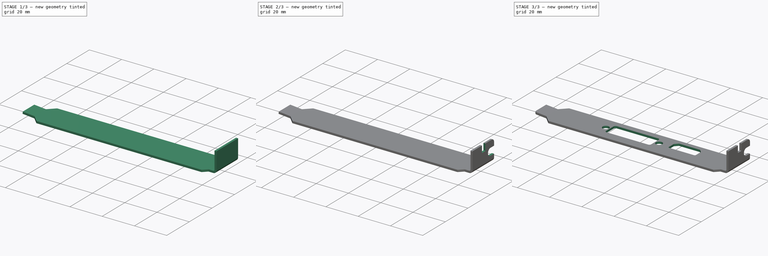
[diagram: build sequence overview — one tinted view per stage of 3, left to right]
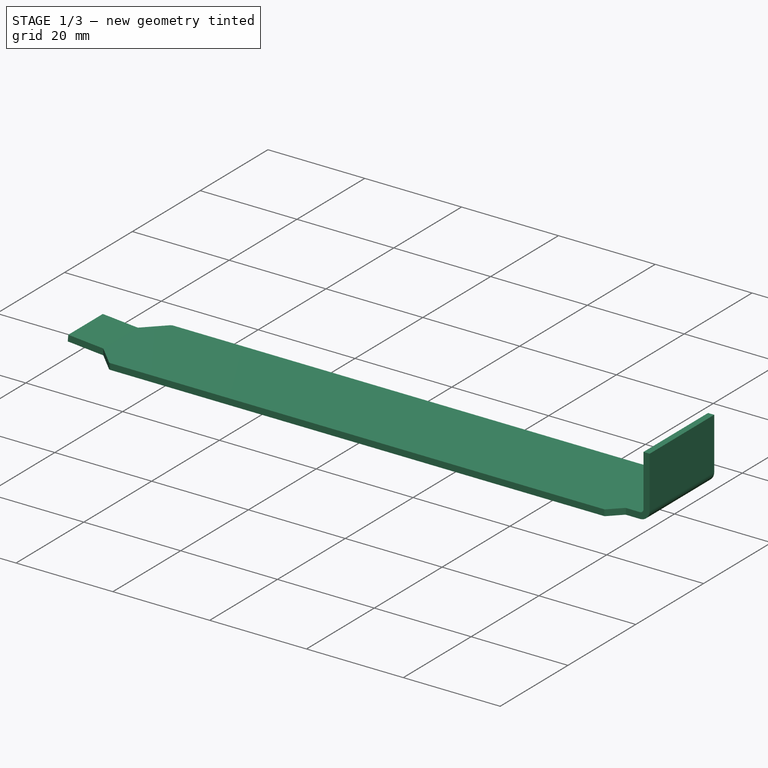
[diagram: stage 1 of 3 — iso view after this stage's code; geometry added in this stage tinted green]
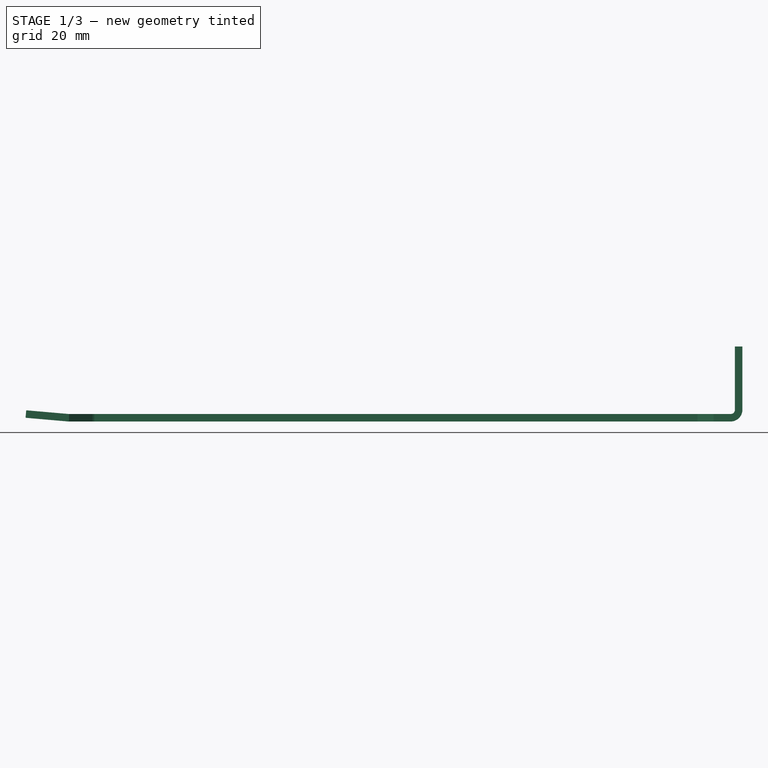
[diagram: stage 1 of 3 — front view after this stage's code; geometry added in this stage tinted green]
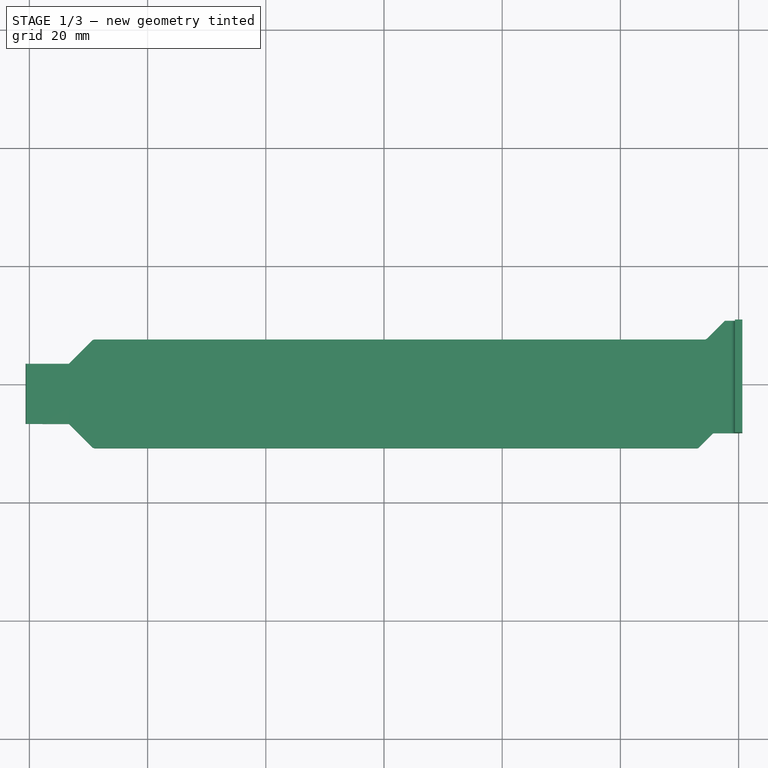
[diagram: stage 1 of 3 — top view after this stage's code; geometry added in this stage tinted green]
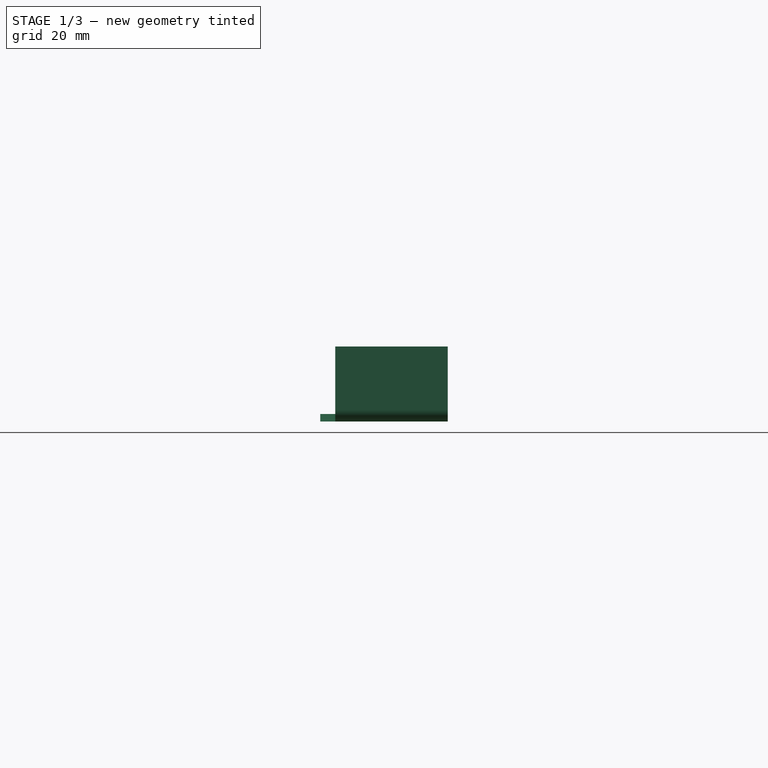
[diagram: stage 1 of 3 — right view after this stage's code; geometry added in this stage tinted green]
FCSTD DOCUMENT  (FreeCAD 1.1R)
Label: bracket
License: All rights reserved
LicenseURL: https://en.wikipedia.org/wiki/All_rights_reserved
objects: Sketcher::SketchObject×4, PartDesign::Pocket×3, PartDesign::Fillet×2, App::Point×1, PartDesign::Pad×1, Image::ImagePlane×1, PartDesign::Body×1
note: 27 computed .brp shape members not serialized (recipe doc carries the construction recipe); baked Part::Feature solids carry a one-line shape summary decoded from their .brp

FEATURE [App::Point] Origin070
  Role = Origin
FEATURE [Sketcher::SketchObject] Sketch
  ArcFitTolerance = 0
  AttachmentOffset = pos=(0,0,-10.79) rot=(0,0,1;0rad)
  AttachmentSupport = -> [XZ_Plane]
  ExternalTypes = [0]
  FullyConstrained = false
  MakeInternals = false
  MapMode = 5
  Placement = pos=(0,10.79,-2.4e-15) rot=(1,0,0;1.5708rad)
  sketch-geometry (11):
    g0: LineSegment StartX=-60.5393 StartY=1.89952 StartZ=0 EndX=-53.3092 EndY=1.26952 EndZ=0
    g1: LineSegment StartX=59.3822 StartY=2.00552 StartZ=0 EndX=59.3813 EndY=12.6995 EndZ=0
    g2: LineSegment StartX=-53.3092 StartY=1.26952 StartZ=0 EndX=58.6453 EndY=1.26852 EndZ=0
    g3: LineSegment StartX=-53.4252 StartY=0.00352388 StartZ=0 EndX=-60.6502 EndY=0.634524 EndZ=0
    g4: LineSegment StartX=58.6453 StartY=0.000523883 StartZ=0 EndX=-53.2983 EndY=-0.000476117 EndZ=0
    g5: LineSegment StartX=60.6502 StartY=12.6995 StartZ=0 EndX=60.6502 EndY=2.00552 EndZ=0
    g6: ArcOfCircle CenterX=58.6453 CenterY=2.00552 CenterZ=0 NormalX=0 NormalY=0 NormalZ=1 AngleXU=0 Radius=2.005 StartAngle=4.71239 EndAngle=6.28319
    g7: LineSegment StartX=-60.6502 StartY=0.634524 StartZ=0 EndX=-60.5393 EndY=1.89952 EndZ=0
    g8: ArcOfCircle CenterX=58.6453 CenterY=2.00552 CenterZ=0 NormalX=0 NormalY=0 NormalZ=1 AngleXU=0 Radius=0.737 StartAngle=4.71239 EndAngle=6.28319
    g9: LineSegment StartX=59.3813 StartY=12.6995 StartZ=0 EndX=60.6502 EndY=12.6995 EndZ=0
    g10: LineSegment StartX=-53.4252 StartY=0.00352388 StartZ=0 EndX=-53.2982 EndY=-0.000476117 EndZ=0
FEATURE [PartDesign::Pad] Pad  label="Body"
  Direction = (0,-1,2e-16)
  Length = 21.59
  Length2 = 10
  Placement = pos=(0,0,0) rot=(1,0,0;1.5708rad)
  Profile = -> Sketch
  ReferenceAxis = -> Sketch [N_Axis]
  SideType = 0
  Suppressed = false
  Type = 0
  Type2 = 0
FEATURE [Sketcher::SketchObject] Sketch001
  ArcFitTolerance = 0
  AttachmentOffset = pos=(0,30,0) rot=(0,0,1;0rad)
  AttachmentSupport = -> [XY_Plane]
  ExternalTypes = [0]
  FullyConstrained = false
  MakeInternals = false
  MapMode = 5
  Placement = pos=(0,30,0) rot=(0,0,1;0rad)
  sketch-geometry (22):
    g0: LineSegment StartX=-65.6502 StartY=-36.681 StartZ=0 EndX=-65.6503 EndY=-44.909 EndZ=0
    g1: LineSegment StartX=-53.3092 StartY=-26.495 StartZ=0 EndX=-49.3227 EndY=-22.497 EndZ=0
    g2: LineSegment StartX=52.0743 StartY=-41.201 StartZ=0 EndX=52.0743 EndY=-46.483 EndZ=0
    g3: LineSegment StartX=-65.6503 StartY=-26.495 StartZ=0 EndX=-65.6502 EndY=-11.915 EndZ=0
    g4: LineSegment StartX=57.6922 StartY=-19.205 StartZ=0 EndX=57.6922 EndY=-11.915 EndZ=0
    g5: LineSegment StartX=-47.0508 StartY=-41.614 StartZ=0 EndX=-49.3227 EndY=-40.678 EndZ=0
    g6: LineSegment StartX=-53.3092 StartY=-36.681 StartZ=0 EndX=-49.3227 EndY=-40.678 EndZ=0
    g7: LineSegment StartX=-47.0508 StartY=-44.909 StartZ=0 EndX=-65.6503 EndY=-44.909 EndZ=0
    g8: LineSegment StartX=64.4153 StartY=-38.255 StartZ=0 EndX=64.4153 EndY=-46.483 EndZ=0
    g9: LineSegment StartX=-47.0508 StartY=-41.614 StartZ=0 EndX=-47.0508 EndY=-44.909 EndZ=0
    g10: LineSegment StartX=57.6922 StartY=-11.915 StartZ=0 EndX=-65.6502 EndY=-11.915 EndZ=0
    g11: LineSegment StartX=52.0743 StartY=-41.201 StartZ=0 EndX=53.2022 EndY=-40.737 EndZ=0
    g12: LineSegment StartX=55.6252 StartY=-38.313 StartZ=0 EndX=55.7673 EndY=-38.255 EndZ=0
    g13: LineSegment StartX=-65.6502 StartY=-36.681 StartZ=0 EndX=-53.3092 EndY=-36.681 EndZ=0
    g14: LineSegment StartX=-65.6503 StartY=-26.495 StartZ=0 EndX=-53.3092 EndY=-26.495 EndZ=0
    g15: LineSegment StartX=52.0743 StartY=-46.483 StartZ=0 EndX=64.4153 EndY=-46.483 EndZ=0
    g16: LineSegment StartX=53.2022 StartY=-40.737 StartZ=0 EndX=55.6252 EndY=-38.313 EndZ=0
    g17: LineSegment StartX=54.6353 StartY=-22.263 StartZ=0 EndX=57.6922 EndY=-19.205 EndZ=0
    g18: LineSegment StartX=54.3512 StartY=-22.381 StartZ=0 EndX=54.6353 EndY=-22.263 EndZ=0
    g19: LineSegment StartX=-49.0387 StartY=-22.381 StartZ=0 EndX=54.3512 EndY=-22.381 EndZ=0
    g20: LineSegment StartX=-49.0387 StartY=-22.381 StartZ=0 EndX=-49.3227 EndY=-22.497 EndZ=0
    g21: LineSegment StartX=55.7673 StartY=-38.255 StartZ=0 EndX=64.4153 EndY=-38.255 EndZ=0
FEATURE [PartDesign::Pocket] Pocket  label="Edge"
  BaseFeature = -> Pad
  Direction = (0,0,-1)
  Length = 5
  Length2 = 5
  Placement = pos=(0,0,0) rot=(1,0,0;1.5708rad)
  Profile = -> Sketch001
  ReferenceAxis = -> Sketch001 [N_Axis]
  SideType = 2
  Suppressed = false
  Type = 1
  Type2 = 0
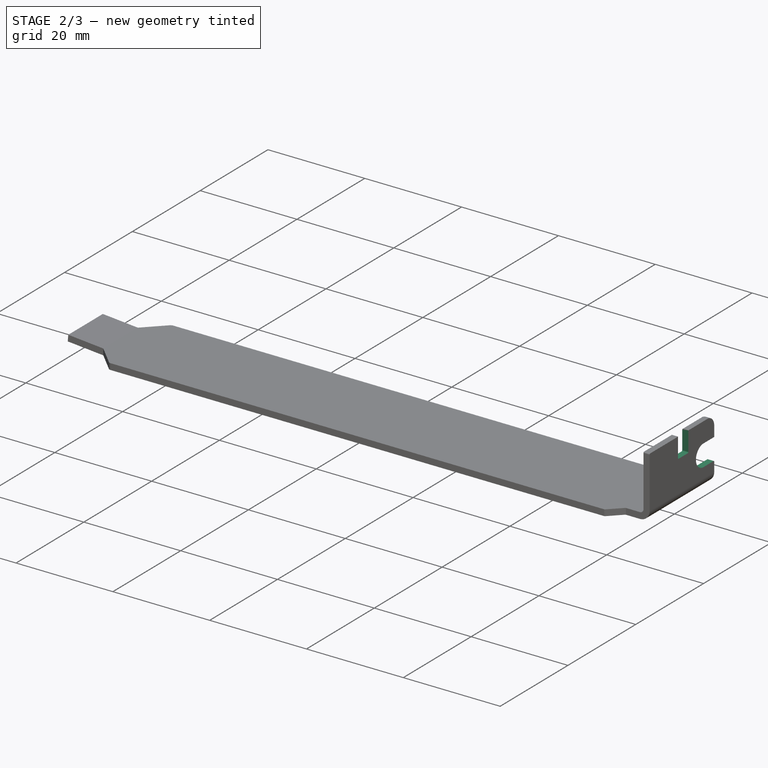
[diagram: stage 2 of 3 — iso view after this stage's code; geometry added in this stage tinted green]
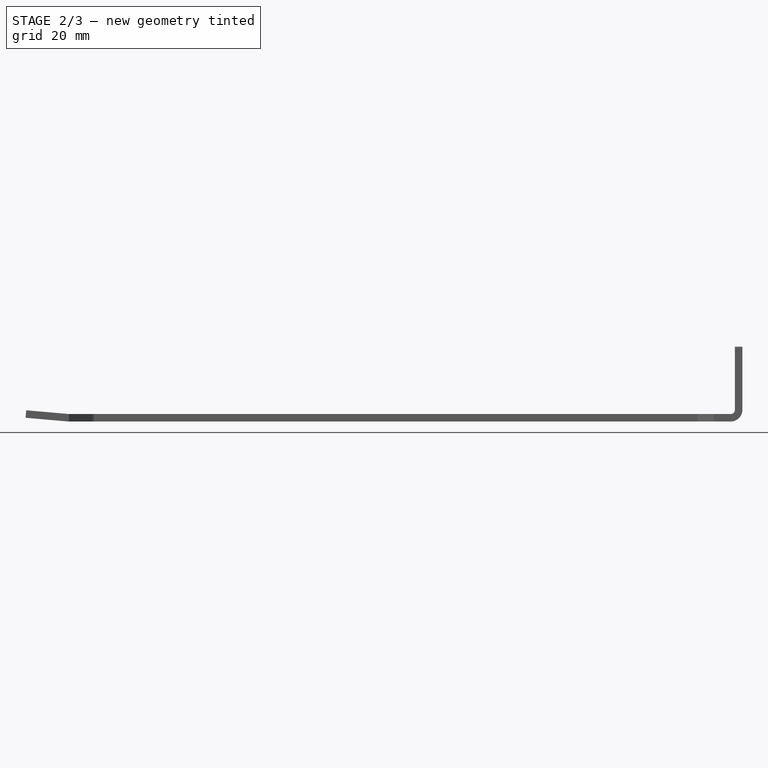
[diagram: stage 2 of 3 — front view after this stage's code; geometry added in this stage tinted green]
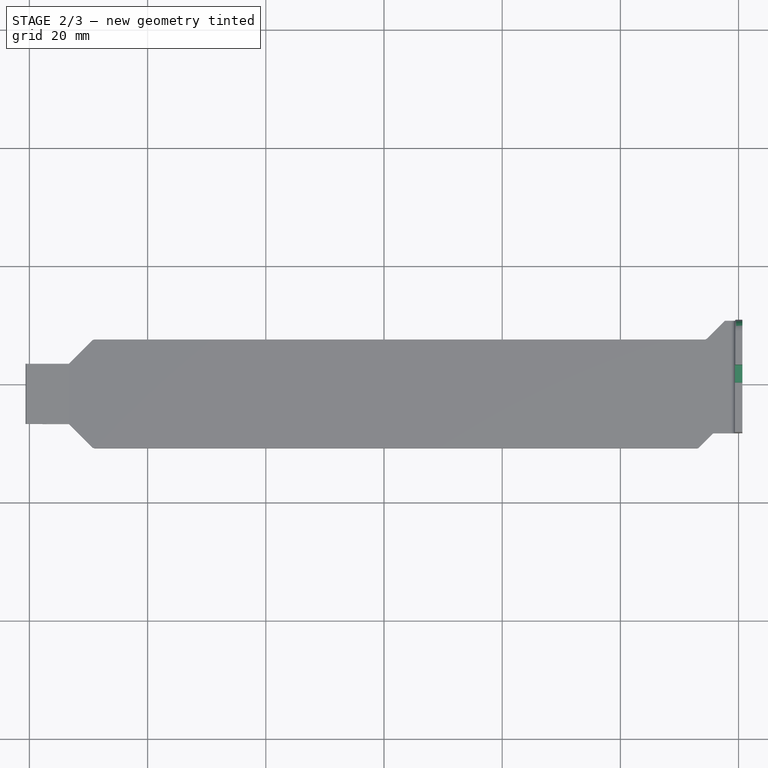
[diagram: stage 2 of 3 — top view after this stage's code; geometry added in this stage tinted green]
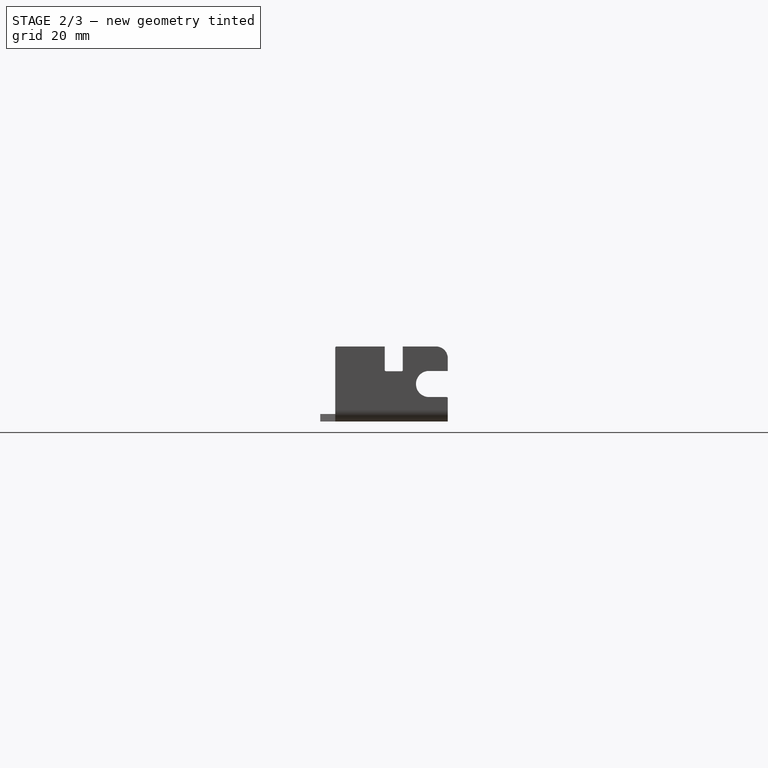
[diagram: stage 2 of 3 — right view after this stage's code; geometry added in this stage tinted green]
FEATURE [Sketcher::SketchObject] Sketch002
  ArcFitTolerance = 0
  AttachmentOffset = pos=(1.263,0,60.65) rot=(0,0,1;0rad)
  AttachmentSupport = -> [YZ_Plane]
  ExternalTypes = [0]
  FullyConstrained = false
  MakeInternals = false
  MapMode = 5
  Placement = pos=(60.65,1.263,0) rot=(0.57735,0.57735,0.57735;2.0944rad)
  sketch-geometry (13):
    g0: LineSegment StartX=6.351 StartY=8.559 StartZ=0 EndX=10.527 EndY=8.559 EndZ=0
    g1: LineSegment StartX=1.907 StartY=8.509 StartZ=0 EndX=-1.141 EndY=8.509 EndZ=0
    g2: LineSegment StartX=10.527 StartY=4.14 StartZ=0 EndX=6.351 EndY=4.14 EndZ=0
    g3: LineSegment StartX=10.527 StartY=4.14 StartZ=0 EndX=10.527 EndY=8.559 EndZ=0
    g4: LineSegment StartX=1.907 StartY=13.7 StartZ=0 EndX=1.907 EndY=8.509 EndZ=0
    g5: LineSegment StartX=-1.141 StartY=8.509 StartZ=0 EndX=-1.141 EndY=13.7 EndZ=0
    g6: ArcOfCircle CenterX=7.527 CenterY=10.7 CenterZ=0 NormalX=0 NormalY=0 NormalZ=1 AngleXU=0 Radius=2 StartAngle=0 EndAngle=1.5708
    g7: LineSegment StartX=10.527 StartY=10.7 StartZ=0 EndX=10.527 EndY=13.7 EndZ=0
    g8: LineSegment StartX=7.527 StartY=12.7 StartZ=0 EndX=7.527 EndY=13.7 EndZ=0
    g9: LineSegment StartX=1.907 StartY=13.7 StartZ=0 EndX=-1.141 EndY=13.7 EndZ=0
    g10: ArcOfCircle CenterX=6.351 CenterY=6.3495 CenterZ=0 NormalX=0 NormalY=0 NormalZ=1 AngleXU=0 Radius=2.2095 StartAngle=1.5708 EndAngle=4.71239
    g11: LineSegment StartX=9.527 StartY=10.7 StartZ=0 EndX=10.527 EndY=10.7 EndZ=0
    g12: LineSegment StartX=7.527 StartY=13.7 StartZ=0 EndX=10.527 EndY=13.7 EndZ=0
FEATURE [PartDesign::Pocket] Pocket001  label="EdgeSide"
  BaseFeature = -> Pocket
  Direction = (-1,0,0)
  Length = 5
  Length2 = 5
  Placement = pos=(0,0,0) rot=(1,0,0;1.5708rad)
  Profile = -> Sketch002
  ReferenceAxis = -> Sketch002 [N_Axis]
  SideType = 2
  Suppressed = false
  Type = 1
  Type2 = 0
FEATURE [PartDesign::Fillet] Fillet  label="RoundEdgesSide"
  Base = -> Pocket001 [Edge92,Edge52,Edge96,Edge90,Edge95,Edge94,Edge64]
  BaseFeature = -> Pocket001
  Placement = pos=(0,0,0) rot=(1,0,0;1.5708rad)
  Radius = 0.2
  SupportTransform = false
  Suppressed = false
  UseAllEdges = false
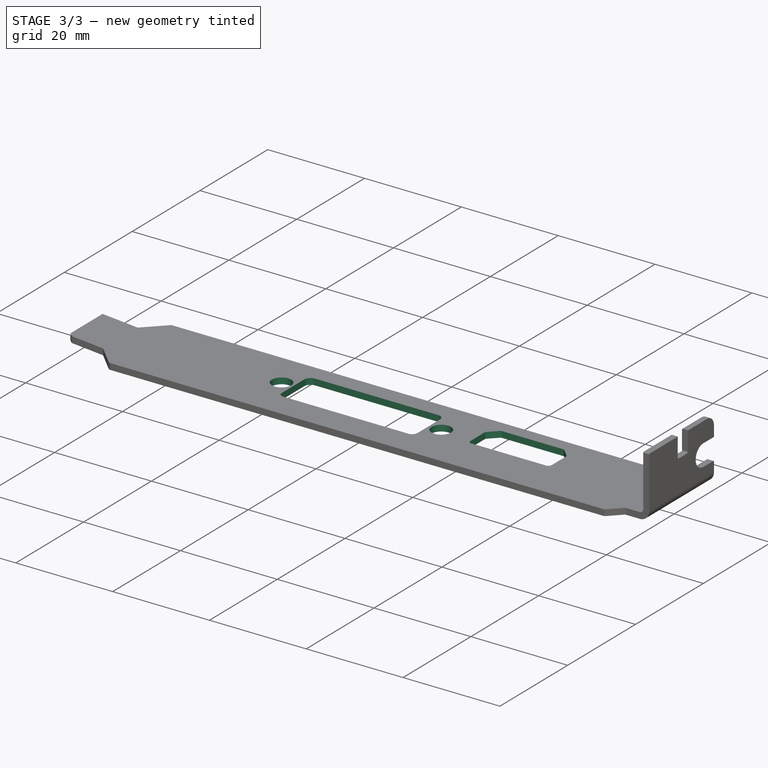
[diagram: stage 3 of 3 — iso view after this stage's code; geometry added in this stage tinted green]
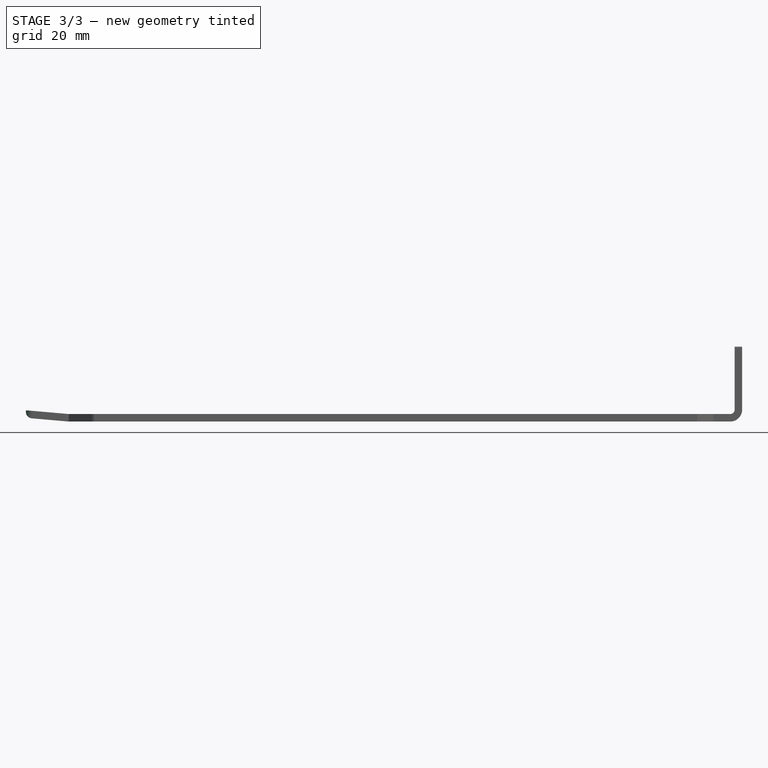
[diagram: stage 3 of 3 — front view after this stage's code; geometry added in this stage tinted green]
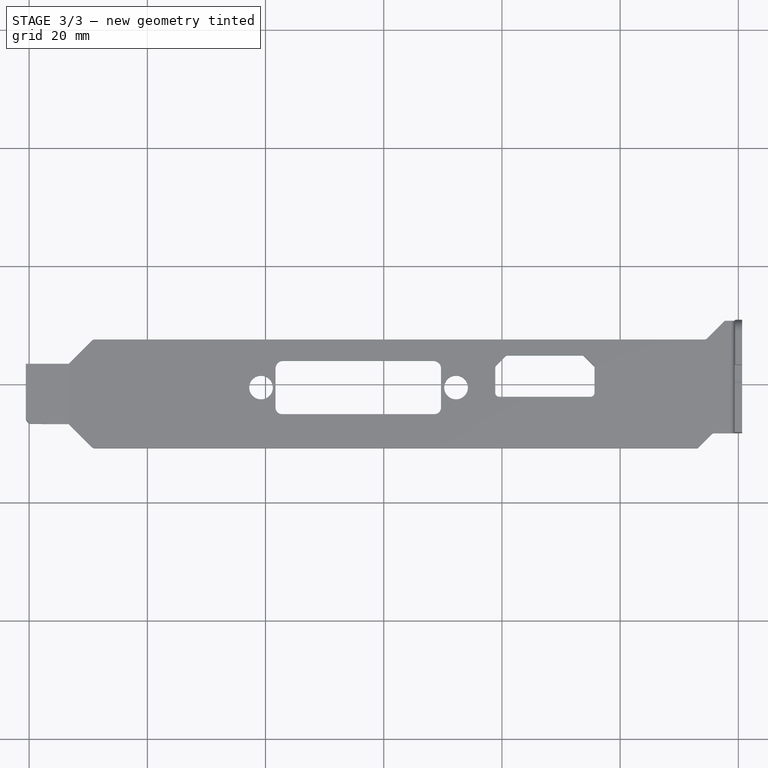
[diagram: stage 3 of 3 — top view after this stage's code; geometry added in this stage tinted green]
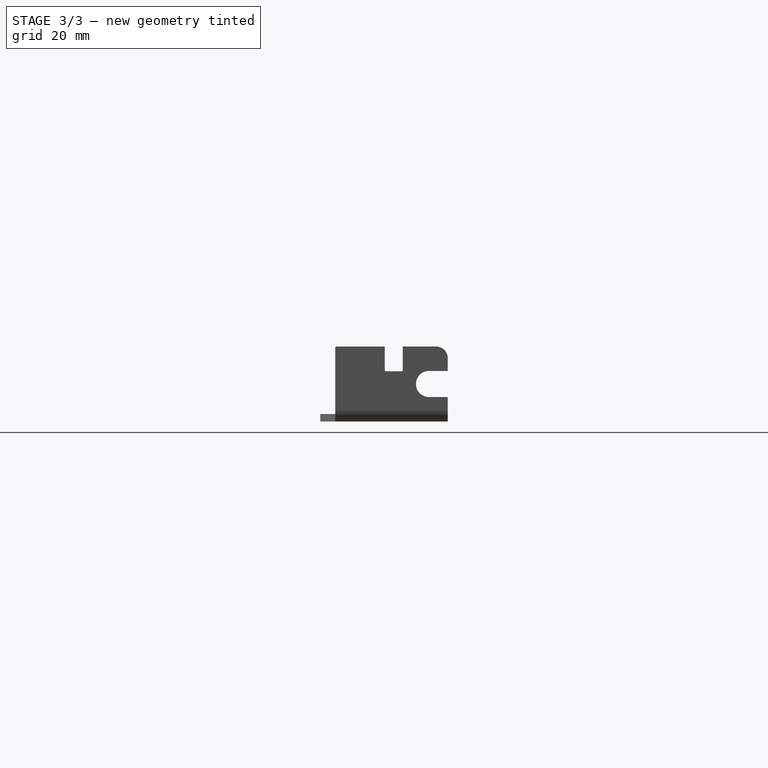
[diagram: stage 3 of 3 — right view after this stage's code; geometry added in this stage tinted green]
FEATURE [PartDesign::Fillet] Fillet001  label="RoundEdgesBottom"
  Base = -> Fillet [Edge115,Edge117]
  BaseFeature = -> Fillet
  Placement = pos=(0,0,0) rot=(1,0,0;1.5708rad)
  Radius = 1.107
  SupportTransform = false
  Suppressed = false
  UseAllEdges = false
FEATURE [Image::ImagePlane] IMG_20260102_180432
  Placement = pos=(-19.763,0.293413,0) rot=(-0.71325,0.700909,0;3.14159rad)
  XSize = 170.944
  YSize = 227.925
FEATURE [Sketcher::SketchObject] Sketch003
  ArcFitTolerance = 1e-06
  AttachmentSupport = -> [Origin]
  ExternalTypes = [0]
  FullyConstrained = false
  MakeInternals = false
  MapMode = 5
  sketch-geometry (33):
    g0: Circle CenterX=-20.7615 CenterY=-0.508223 CenterZ=0 NormalX=0 NormalY=0 NormalZ=1 AngleXU=0 Radius=2
    g1: Circle CenterX=12.2385 CenterY=-0.508223 CenterZ=0 NormalX=0 NormalY=0 NormalZ=1 AngleXU=0 Radius=2
    g2: LineSegment [constr] StartX=-20.7615 StartY=-0.508223 StartZ=0 EndX=12.2385 EndY=-0.508223 EndZ=0
    g3: LineSegment StartX=-17.215 StartY=-5.00822 StartZ=0 EndX=8.5994 EndY=-5.00822 EndZ=0
    g4: LineSegment StartX=9.69219 StartY=-3.91543 StartZ=0 EndX=9.69219 EndY=2.71898 EndZ=0
    g5: LineSegment StartX=8.4194 StartY=3.99178 StartZ=0 EndX=-17.035 EndY=3.99178 EndZ=0
    g6: LineSegment StartX=-18.3078 StartY=2.71898 StartZ=0 EndX=-18.3078 EndY=-3.91543 EndZ=0
    g7: ArcOfCircle CenterX=8.4194 CenterY=2.71898 CenterZ=0 NormalX=0 NormalY=0 NormalZ=1 AngleXU=0 Radius=1.27279 StartAngle=0 EndAngle=1.5708
    g8: GeomPoint [constr] X=9.69219 Y=3.99178 Z=0
    g9: ArcOfCircle CenterX=-17.035 CenterY=2.71898 CenterZ=0 NormalX=0 NormalY=0 NormalZ=1 AngleXU=0 Radius=1.27279 StartAngle=1.5708 EndAngle=3.14159
    g10: GeomPoint [constr] X=-18.3078 Y=3.99178 Z=0
    g11: ArcOfCircle CenterX=-17.215 CenterY=-3.91543 CenterZ=0 NormalX=0 NormalY=0 NormalZ=1 AngleXU=0 Radius=1.09279 StartAngle=3.14159 EndAngle=4.71239
    g12: GeomPoint [constr] X=-18.3078 Y=-5.00822 Z=0
    g13: ArcOfCircle CenterX=8.5994 CenterY=-3.91543 CenterZ=0 NormalX=0 NormalY=0 NormalZ=1 AngleXU=0 Radius=1.09279 StartAngle=4.71239 EndAngle=6.28319
    g14: GeomPoint [constr] X=9.69219 Y=-5.00822 Z=0
    g15: LineSegment StartX=19.5672 StartY=-2.08153 StartZ=0 EndX=34.9512 EndY=-2.08153 EndZ=0
    g16: LineSegment StartX=35.6728 StartY=-1.35992 StartZ=0 EndX=35.6728 EndY=2.81281 EndZ=0
    g17: LineSegment StartX=35.5274 StartY=3.16389 StartZ=0 EndX=33.9071 EndY=4.78418 EndZ=0
    g18: LineSegment StartX=33.5829 StartY=4.91847 StartZ=0 EndX=20.9785 EndY=4.91847 EndZ=0
    g19: LineSegment StartX=20.6274 StartY=4.77305 StartZ=0 EndX=19.0071 EndY=3.15275 EndZ=0
    g20: LineSegment StartX=18.8728 StartY=2.82855 StartZ=0 EndX=18.8728 EndY=-1.38714 EndZ=0
    g21: ArcOfCircle CenterX=34.9512 CenterY=-1.35993 CenterZ=0 NormalX=0 NormalY=0 NormalZ=1 AngleXU=0 Radius=0.721609 StartAngle=4.71239 EndAngle=6.28319
    g22: GeomPoint [constr] X=35.6728 Y=-2.08153 Z=0
    g23: ArcOfCircle CenterX=35.1763 CenterY=2.81281 CenterZ=0 NormalX=0 NormalY=0 NormalZ=1 AngleXU=0 Radius=0.496494 StartAngle=0 EndAngle=0.785398
    g24: GeomPoint [constr] X=35.6728 Y=3.01847 Z=0
    g25: ArcOfCircle CenterX=33.5829 CenterY=4.45997 CenterZ=0 NormalX=0 NormalY=0 NormalZ=1 AngleXU=0 Radius=0.458494 StartAngle=0.785398 EndAngle=1.5708
    g26: GeomPoint [constr] X=33.7728 Y=4.91847 Z=0
    g27: ArcOfCircle CenterX=20.9785 CenterY=4.42197 CenterZ=0 NormalX=0 NormalY=0 NormalZ=1 AngleXU=0 Radius=0.496494 StartAngle=1.5708 EndAngle=2.35619
    g28: GeomPoint [constr] X=20.7728 Y=4.91847 Z=0
    g29: ArcOfCircle CenterX=19.3313 CenterY=2.82855 CenterZ=0 NormalX=0 NormalY=0 NormalZ=1 AngleXU=0 Radius=0.458494 StartAngle=2.35619 EndAngle=3.14159
    g30: GeomPoint [constr] X=18.8728 Y=3.01847 Z=0
    g31: ArcOfCircle CenterX=19.5672 CenterY=-1.38714 CenterZ=0 NormalX=0 NormalY=0 NormalZ=1 AngleXU=0 Radius=0.694391 StartAngle=3.14159 EndAngle=4.71239
    g32: GeomPoint [constr] X=18.8728 Y=-2.08153 Z=0
  constraints (60):
    c: Equal(g1,g0)
    c: Diameter(g0) = 4
    c: Coincident(g2,g0)
    c: Coincident(g2,g1)
    c: Horizontal(g2)
    c: DistanceX(g2,g2) = 33
    c: Horizontal(g3)
    c: Horizontal(g5)
    c: Vertical(g6)
    c: DistanceX(g12,g14) = 28
    c: Symmetric(g8,g14,g2)
    c: DistanceY(g14,g8) = 9
    c: PointOnObject(g8,g4)
    c: PointOnObject(g8,g5)
    c: Tangent(g4,g7) = -1.5708
    c: Tangent(g5,g7) = -1.5708
    c: PointOnObject(g10,g5)
    c: PointOnObject(g10,g6)
    c: Tangent(g5,g9) = -1.5708
    c: Tangent(g6,g9) = -1.5708
    c: PointOnObject(g12,g3)
    c: PointOnObject(g12,g6)
    c: Tangent(g3,g11) = -1.5708
    c: Tangent(g6,g11) = -1.5708
    c: PointOnObject(g14,g3)
    c: PointOnObject(g14,g4)
    c: Tangent(g3,g13) = -1.5708
    c: Tangent(g4,g13) = -1.5708
    c: Horizontal(g15)
    c: Vertical(g16)
    c: Horizontal(g18)
    c: Vertical(g20)
    c: Distance(g32,g18) = 7
    c: DistanceX(g28,g26) = 13
    c: DistanceY(g22,g24) = 5.1
    c: PointOnObject(g22,g15)
    c: PointOnObject(g22,g16)
    c: Tangent(g15,g21) = -1.5708
    c: Tangent(g16,g21) = -1.5708
    c: PointOnObject(g24,g16)
    c: PointOnObject(g24,g17)
    c: Tangent(g16,g23) = -1.5708
    c: Tangent(g17,g23) = -1.5708
    c: PointOnObject(g26,g17)
    c: PointOnObject(g26,g18)
    c: Tangent(g17,g25) = -1.5708
    c: Tangent(g18,g25) = -1.5708
    c: PointOnObject(g28,g18)
    c: PointOnObject(g28,g19)
    c: Tangent(g18,g27) = -1.5708
    c: Tangent(g19,g27) = -1.5708
    c: PointOnObject(g30,g19)
    c: PointOnObject(g30,g20)
    c: Tangent(g19,g29) = -1.5708
    c: Tangent(g20,g29) = -1.5708
    c: PointOnObject(g32,g15)
    c: PointOnObject(g32,g20)
    c: Tangent(g15,g31) = -1.5708
    c: Tangent(g20,g31) = -1.5708
    c: DistanceX(g15,g15) = 15.384
FEATURE [PartDesign::Pocket] Pocket002
  BaseFeature = -> Fillet001
  Direction = (0,0,-1)
  Length = 10
  Length2 = 5
  Placement = pos=(0,0,0) rot=(1,0,0;1.5708rad)
  Profile = -> Sketch003
  ReferenceAxis = -> Sketch003 [N_Axis]
  Refine = true
  SideType = 2
  Suppressed = false
  Type = 0
  Type2 = 0
FEATURE [PartDesign::Body] Body  label="PCI_Slot_Bracket_Standard_Solid"
  AllowCompound = true
  Group = -> [Sketch,Pad,Sketch001,Pocket,Sketch002,Pocket001,Fillet,Fillet001,Sketch003,Pocket002]
  Origin = -> Origin
  Placement = pos=(17.553,-2.1e-15,0) rot=(0,0,1;3.14159rad)
  Tip = -> Pocket002
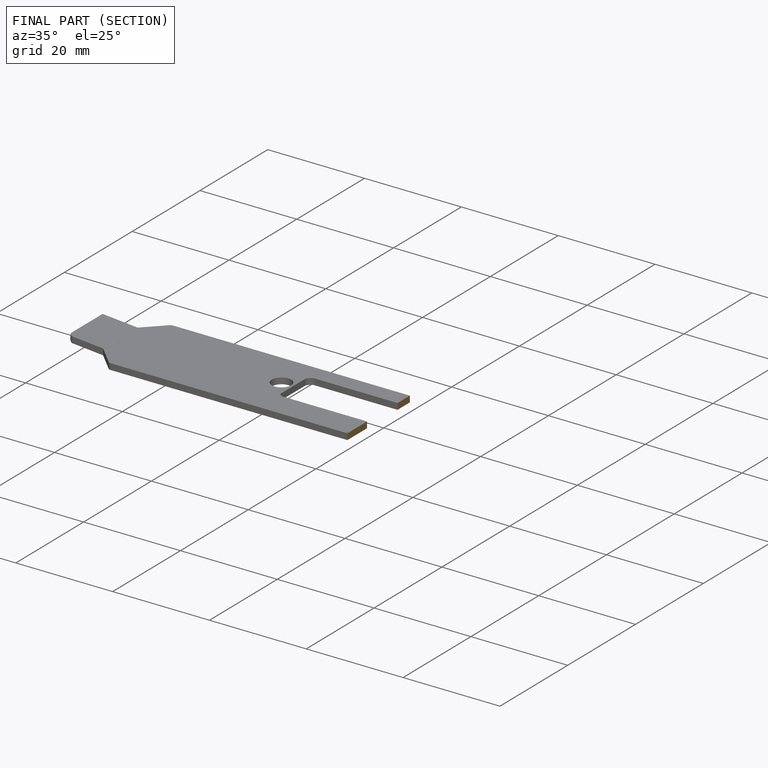
[diagram: finished part — half-section view (interior)]
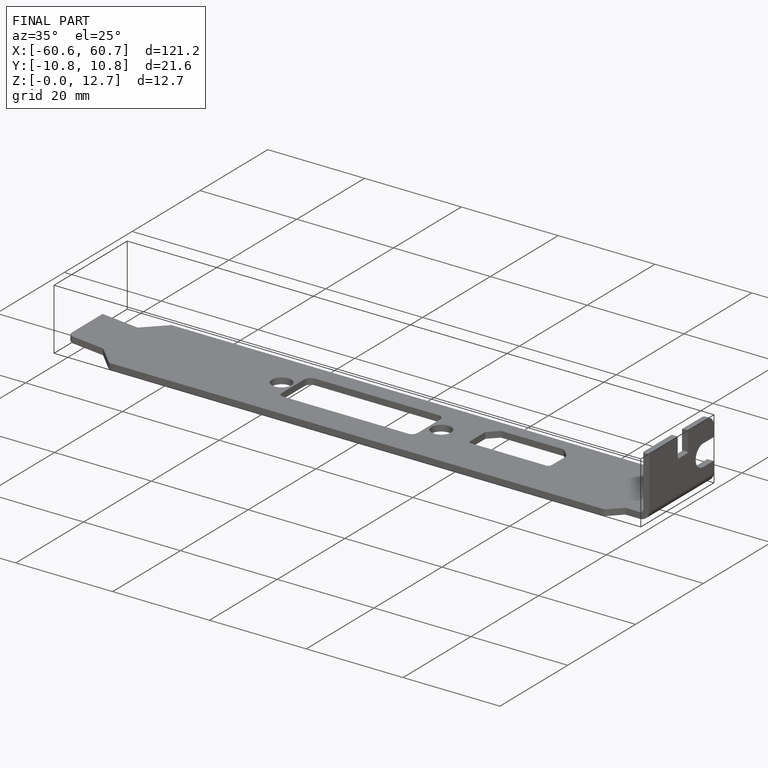
[diagram: finished part — iso view with bounding-box wireframe]
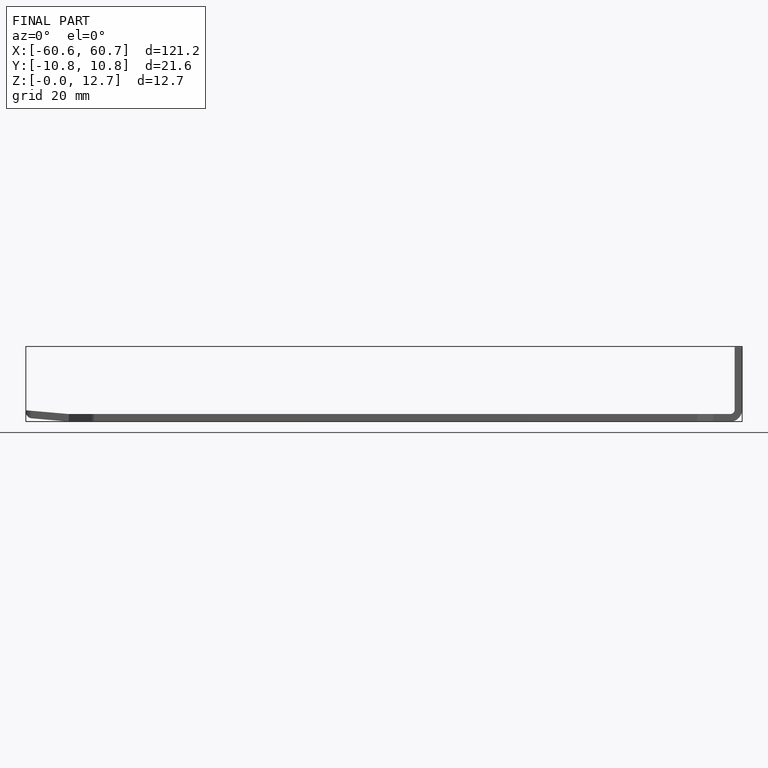
[diagram: finished part — front view with bounding-box wireframe]
